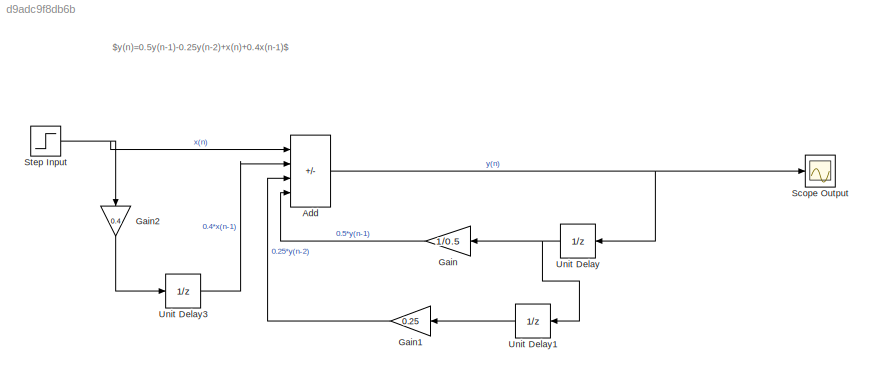
MODEL slx_d9adc9f8db6b
KIND model
CONFIG AbsTol = auto
CONFIG EnableMultiTasking = off
CONFIG FixedStep = auto
CONFIG MaxStep = auto
CONFIG MinStep = auto
CONFIG RelTol = 1e-3
CONFIG SampleTimeConstraint = Unconstrained
CONFIG SolverName = VariableStepAuto
CONFIG StartTime = 0.0
CONFIG StopTime = 10.0
BLOCK [Sum] Add
  IconShape = rectangular
  Inputs = ++-+
  Ports = [4, 1]
BLOCK [Gain] Gain
  Gain = 1/0.5
BLOCK [Gain] Gain1
  Gain = 0.25
BLOCK [Gain] Gain2
  Gain = 0.4
  NameLocation = left
BLOCK [Scope] Scope Output
  Floating = off
  NumInputPorts = 1
  Ports = [1]
  ScopeSpecificationString = Simulink.scopes.TimeScopeBlockCfg('CurrentConfiguration', extmgr.ConfigurationSet(extmgr.Configuration('Core','General UI',true),extmgr.Configuration('Core','Source UI',true),extmgr.Configuration('Sources','WiredSimulink',true),extmgr.Configuration('Visuals','Time Domain',true,'SerializedDisplays',{struct('MinYLimReal','-547382506927.34473','MaxYLimReal','4926442562346.10352','YLabelReal','','MinY...<+1414ch>
BLOCK [Step] Step Input
  SampleTime = 0
BLOCK [UnitDelay] Unit Delay
  HasFrameUpgradeWarning = on
  SampleTime = -1
BLOCK [UnitDelay] Unit Delay1
  HasFrameUpgradeWarning = on
  SampleTime = -1
BLOCK [UnitDelay] Unit Delay3
  HasFrameUpgradeWarning = on
  SampleTime = -1
ANNOTATION (root): $y(n)=0.5y(n-1)-0.25y(n-2)+x(n)+0.4x(n-1)$
NET Add:1 -> Scope Output:1, Unit Delay:1
LINE Gain1:1 -> Add:3
LINE Gain2:1 -> Unit Delay3:1
LINE Gain:1 -> Add:4
NET Step Input:1 -> Add:1, Gain2:1
LINE Unit Delay1:1 -> Gain1:1
LINE Unit Delay3:1 -> Add:2
NET Unit Delay:1 -> Gain:1, Unit Delay1:1
note: NET lines group one-source signal fan-out (src -> all destinations, sorted); 1:1 wires keep LINE
